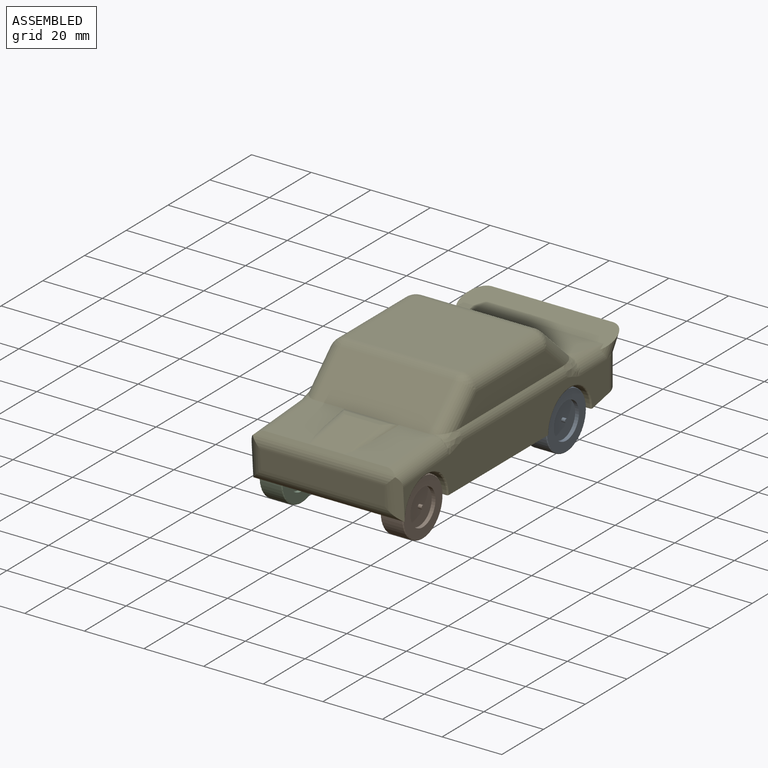
[diagram: assembled view]
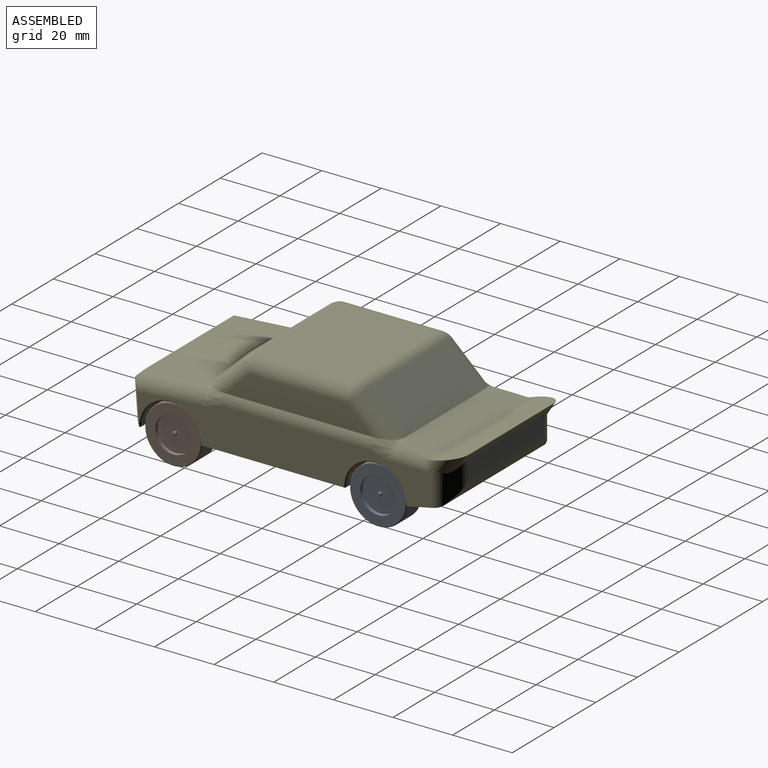
[diagram: assembled view, second angle]
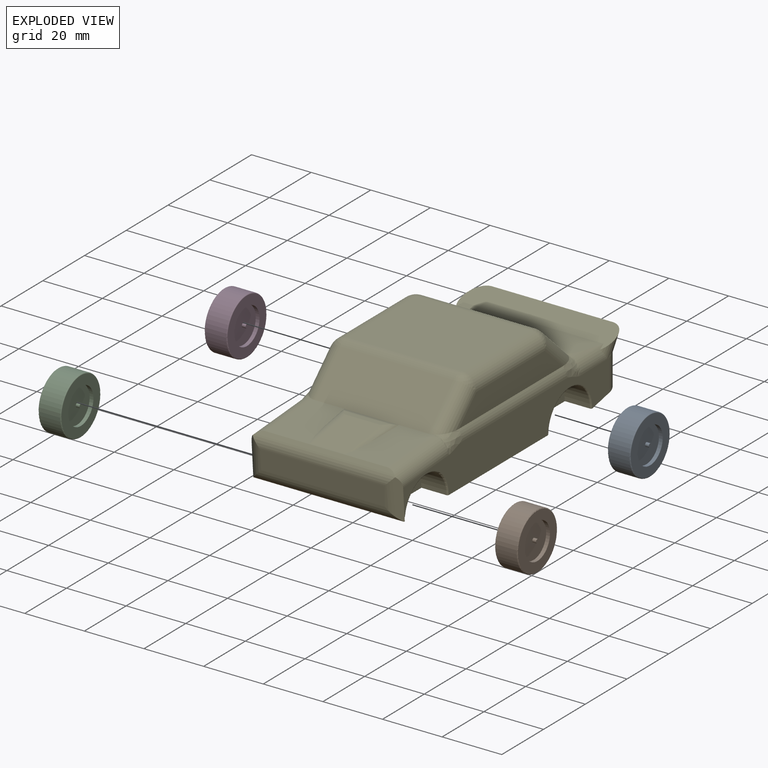
[diagram: exploded view]
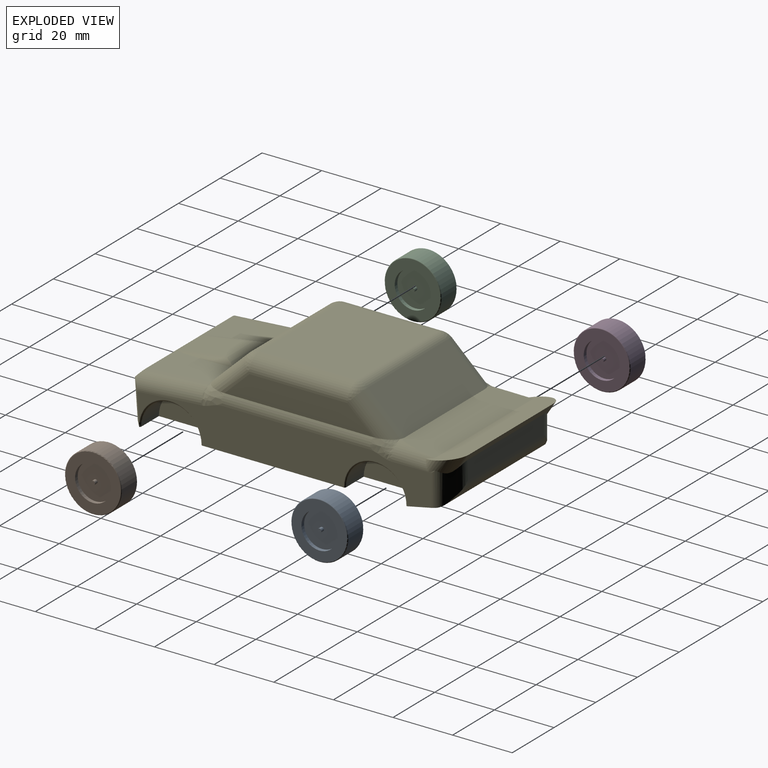
[diagram: exploded view, second angle]
ASSEMBLY  parts=5 mates=4
PART A: 13 faces, bbox 7.6x20.6x20.6 mm
  f0: cylinder r=0.65mm len=1.3mm, axis (-1,0,0), area 5.2mm2, adj f1,f2
  f1: plane 1.3x1.3mm, normal (1,0,0), area 1.3mm2, adj f0
  f2: plane 12.06x12.06mm, normal (1,0,0), area 113mm2, adj f0,f4
  f3: cylinder r=6.03mm len=12.06mm, axis (-1,0,0), area 48.1mm2, adj f7,f10
  f4: cylinder r=6.03mm len=12.06mm, axis (-1,0,0), area 48.1mm2, adj f2,f6
  f5: cylinder r=9.53mm len=19.05mm, axis (-1,0,0), area 425.6mm2, adj f11,f12
  f6: plane 18.54x18.54mm, normal (1,0,0), area 155.7mm2, adj f4,f12
  f7: plane 18.54x18.54mm, normal (-1,0,0), area 155.7mm2, adj f3,f11
  f8: plane 1.3x1.3mm, normal (-1,0,0), area 1.3mm2, adj f9
  f9: cylinder r=0.65mm len=1.3mm, axis (-1,0,0), area 5.2mm2, adj f8,f10
  f10: plane 12.06x12.06mm, normal (-1,0,0), area 113mm2, adj f3,f9
  f11: torus R=9.27mm, axis (1,0,0), area 23.6mm2, adj f5,f7
  f12: torus R=9.27mm, axis (1,0,0), area 23.6mm2, adj f5,f6
PART B: same geometry as A
PART C: same geometry as A
PART D: same geometry as A
PART E: 81 faces, bbox 51.5x111.3x30.9 mm
  f0: plane 1.35x0.32mm, normal (0,0,1), area 0.1mm2, adj f4,f32,f79
  f1: plane 1.36x0.32mm, normal (0,0,1), area 0.1mm2, adj f9,f40,f69
  f2: cylinder r=10.16mm len=20.32mm, axis (-1,0,0), area 267.5mm2, adj f13,f28,f44
  f3: cylinder r=10.16mm len=20.32mm, axis (-1,0,0), area 267.5mm2, adj f13,f26,f45
  f4: plane 40.64x21.56mm, normal (0,-0.07,1), area 537.4mm2, adj f0,f5,f20,f24,f29,f30,f59,f67
  f5: plane 1.35x0.32mm, normal (0,0,1), area 0.1mm2, adj f4,f34,f73
  f6: cylinder r=10.16mm len=20.32mm, axis (-1,0,0), area 267.5mm2, adj f13,f25,f47
  f7: plane 50.8x9.5mm, normal (0,0.2,-0.98), area 492.5mm2, adj f13,f14,f15,f45,f47,f51,f52,f53
  f8: plane 36.43x6.29mm, normal (0,1,0), area 229.2mm2, adj f16,f54,f55,f56
  f9: plane 47.05x13.05mm, normal (0,0.09,1), area 589.7mm2, adj f1,f10,f17,f18,f69,f75
  f10: plane 1.36x0.32mm, normal (0,0,1), area 0.1mm2, adj f9,f37,f75
  f11: plane 41.51x6.43mm, normal (0,-1,-0.07), area 267.7mm2, adj f63,f64,f65,f66
  f12: cylinder r=10.16mm len=20.32mm, axis (-1,0,0), area 267.5mm2, adj f13,f27,f46
  f13: plane 90.06x50.8mm, normal (0,0,-1), area 3852.2mm2, adj f2,f3,f6,f7,f12,f14,f15,f25
  f14: plane 98.78x13.83mm, normal (1,0,0), area 907.9mm2, adj f7,f13,f46,f47,f53,f60,f75,f76
  f15: plane 98.78x13.82mm, normal (-1,0,0), area 907.9mm2, adj f7,f13,f44,f45,f51,f61,f69,f70
  f16: plane 40.99x3.93mm, normal (0,0.84,-0.54), area 138.8mm2, adj f8,f17,f54,f56,f57,f58
  f17: plane 50.92x11.87mm, normal (0,-0.24,0.97), area 465.5mm2, adj f9,f16,f57,f58,f69,f75
  f18: plane 38.1x12.54mm, normal (0,0.68,0.73), area 653.6mm2, adj f9,f37,f40,f43
  f19: plane 38.1x32.74mm, normal (0,0,1), area 1247.6mm2, adj f33,f38,f39,f43
  f20: plane 38.1x12.16mm, normal (0,-0.69,0.72), area 641.8mm2, adj f4,f23,f32,f33,f34
  f21: plane 49.64x7.99mm, normal (1,0,0), area 329.2mm2, adj f32,f37,f38,f77
  f22: plane 49.64x7.99mm, normal (-1,0,0), area 329.2mm2, adj f34,f39,f40,f71
  f23: plane 18.54x2.32mm, normal (0,0.31,0.95), area 38.2mm2, adj f20,f29,f30,f31,f67,f68
  f24: plane 16.7x11.03mm, normal (0,-0.15,0.99), area 186.3mm2, adj f4,f31,f67,f68
  f25: plane 20.32x10.16mm, normal (1,0,0), area 162.1mm2, adj f6,f13
  f26: plane 20.32x10.16mm, normal (-1,0,0), area 162.1mm2, adj f3,f13
  f27: plane 20.32x10.16mm, normal (1,0,0), area 162.1mm2, adj f12,f13
  f28: plane 20.32x10.16mm, normal (-1,0,0), area 162.1mm2, adj f2,f13
  f29: plane 0.83x0.1mm, normal (0.71,-0.1,0.7), area 0mm2, adj f4,f23,f68
  f30: plane 0.83x0.1mm, normal (-0.71,-0.1,0.7), area 0mm2, adj f4,f23,f67
  f31: plane 15.61x2.34mm, normal (0,0.09,1), area 33.2mm2, adj f23,f24,f67,f68
  f32: cylinder r=5.08mm len=15.67mm, axis (0,0.72,0.69), area 119mm2, adj f0,f20,f21,f35,f78
  f33: cylinder r=5.08mm len=38.1mm, axis (-1,0,0), area 148mm2, adj f19,f20,f35,f36
  f34: cylinder r=5.08mm len=15.67mm, axis (0,-0.72,-0.69), area 119mm2, adj f5,f20,f22,f36,f72
  f35: sphere r=5.08mm, area 19.7mm2, adj f32,f33,f38
  f36: sphere r=5.08mm, area 25.1mm2, adj f33,f34,f39
  f37: cylinder r=5.08mm len=16.01mm, axis (0,0.73,-0.68), area 121.1mm2, adj f10,f18,f21,f41,f76
  f38: cylinder r=5.08mm len=32.74mm, axis (0,1,0), area 261.3mm2, adj f19,f21,f35,f41
  f39: cylinder r=5.08mm len=32.74mm, axis (0,-1,0), area 261.3mm2, adj f19,f22,f36,f42
  f40: cylinder r=5.08mm len=16.01mm, axis (0,-0.73,0.68), area 121.1mm2, adj f1,f18,f22,f42,f70
  f41: sphere r=5.08mm, area 21.1mm2, adj f37,f38,f43
  f42: sphere r=5.08mm, area 28.5mm2, adj f39,f40,f43
  f43: cylinder r=5.08mm len=38.1mm, axis (-1,0,0), area 145.3mm2, adj f18,f19,f41,f42
  f44: torus R=10.67mm, axis (1,0,0), area 25.8mm2, adj f2,f13,f15,f61
  f45: torus R=10.67mm, axis (1,0,0), area 25.9mm2, adj f3,f7,f13,f15
  f46: torus R=10.67mm, axis (1,0,0), area 25.8mm2, adj f12,f13,f14,f60
  f47: torus R=10.67mm, axis (1,0,0), area 25.9mm2, adj f6,f7,f13,f14
  f48: plane 11.13x2.8mm, normal (0.71,0.71,0), area 25.5mm2, adj f50,f52,f53,f54,f58
  f49: plane 11.13x2.8mm, normal (-0.71,0.71,0), area 25.5mm2, adj f50,f51,f52,f56,f57
  f50: plane 46.47x2.18mm, normal (0,0.78,-0.63), area 125.2mm2, adj f48,f49,f52,f54,f55,f56
  f51: cylinder r=5.08mm len=11.56mm, axis (0,0,-1), area 42.1mm2, adj f7,f15,f49,f52,f57,f69
  f52: cylinder r=5.08mm len=50.43mm, axis (1,0,0), area 168.6mm2, adj f7,f48,f49,f50,f51,f53
  f53: cylinder r=5.08mm len=11.56mm, axis (0,0,1), area 42.1mm2, adj f7,f14,f48,f52,f58,f75
  f54: cylinder r=5.08mm len=9.93mm, axis (0,0,1), area 29.3mm2, adj f8,f16,f48,f50,f55,f58
  f55: cylinder r=5.08mm len=42.85mm, axis (-1,0,0), area 137.6mm2, adj f8,f50,f54,f56
  f56: cylinder r=5.08mm len=9.93mm, axis (0,0,1), area 29.3mm2, adj f8,f16,f49,f50,f55,f57
  f57: cylinder r=5.08mm len=13.29mm, axis (0,0.54,0.84), area 51.9mm2, adj f16,f17,f49,f51,f56,f69
  f58: cylinder r=5.08mm len=13.29mm, axis (0,-0.54,-0.84), area 51.9mm2, adj f16,f17,f48,f53,f54,f75
  f59: plane 47.34x1.64mm, normal (0,-0.76,0.65), area 66.7mm2, adj f4,f65,f74,f80
  f60: plane 14.05x2.54mm, normal (0.71,-0.71,-0.05), area 18.2mm2, adj f13,f14,f46,f62,f66,f80
  f61: plane 14.05x2.54mm, normal (-0.71,-0.71,-0.05), area 18.2mm2, adj f13,f15,f44,f62,f63,f74
  f62: plane 50.43x1.07mm, normal (0,-0.68,-0.73), area 72.3mm2, adj f13,f60,f61,f63,f64,f66
  f63: cylinder r=5.08mm len=13.28mm, axis (0,0.07,-1), area 40.4mm2, adj f11,f61,f62,f64,f65,f74
  f64: cylinder r=5.08mm len=48.43mm, axis (1,0,0), area 171mm2, adj f11,f62,f63,f66
  f65: cylinder r=5.08mm len=47.82mm, axis (-1,0,0), area 179.8mm2, adj f11,f59,f63,f66,f74,f80
  f66: cylinder r=5.08mm len=13.28mm, axis (0,0.07,-1), area 40.4mm2, adj f11,f60,f62,f64,f65,f80
  f67: cylinder r=5.08mm len=21.04mm, axis (0,-0.99,-0.15), area 46.8mm2, adj f4,f23,f24,f30,f31
  f68: cylinder r=5.08mm len=21.04mm, axis (0,-0.99,-0.15), area 46.8mm2, adj f4,f23,f24,f29,f31
  f69: cylinder r=5.08mm len=14.55mm, axis (0,-1,0), area 69.2mm2, adj f1,f9,f15,f17,f51,f57,f70
  f70: bspline ~7.21x5.08mm, area 36.7mm2, adj f15,f40,f69,f71
  f71: cylinder r=5.08mm len=49.64mm, axis (0,1,0), area 182.3mm2, adj f15,f22,f70,f72
  f72: bspline ~7.11x5.08mm, area 36.2mm2, adj f15,f34,f71,f73
  f73: cylinder r=5.08mm len=5.08mm, axis (0,-1,0), area 1.3mm2, adj f5,f15,f72,f74
  f74: cylinder r=5.08mm len=23.37mm, axis (0,-1,-0.07), area 176.9mm2, adj f4,f15,f59,f61,f63,f65,f73
  f75: cylinder r=5.08mm len=14.55mm, axis (0,1,0), area 69.2mm2, adj f9,f10,f14,f17,f53,f58,f76
  f76: bspline ~7.21x5.08mm, area 36.7mm2, adj f14,f37,f75,f77
  f77: cylinder r=5.08mm len=49.64mm, axis (0,1,0), area 182.3mm2, adj f14,f21,f76,f78
  f78: bspline ~7.11x5.08mm, area 36.2mm2, adj f14,f32,f77,f79
  f79: cylinder r=5.08mm len=5.08mm, axis (0,1,0), area 1.3mm2, adj f0,f14,f78,f80
  f80: cylinder r=5.08mm len=23.37mm, axis (0,1,0.07), area 176.9mm2, adj f4,f14,f59,f60,f65,f66,f79
PLACE A t=(20.32,27.87,-15.19)mm
PLACE B rot(axis=(-1,0,0),131.9deg) t=(20.32,-40.85,-15.19)mm
PLACE C t=(-20.32,-40.85,-15.19)mm
PLACE D t=(-20.32,27.87,-15.19)mm
PLACE E t=(0,-0.42,0.21)mm fixed
MATE revolute B.f0 <-> E.f2  axis (-1,0,0) through (16.51,-40.85,-15.19)mm
MATE revolute A.f0 <-> E.f3  axis (-1,0,0) through (16.51,27.87,-15.19)mm
MATE slider C.f0 <-> E.f2  axis (1,0,0) through (-16.51,-40.85,-15.19)mm
MATE slider D.f0 <-> E.f3  axis (1,0,0) through (-16.51,27.87,-15.19)mm
